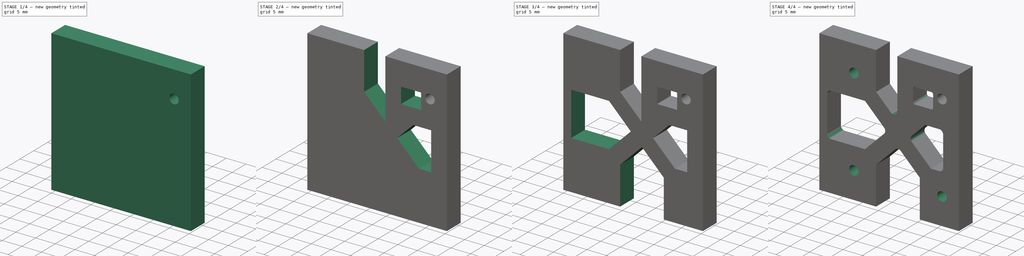
[diagram: build sequence overview — one tinted view per stage of 4, left to right]
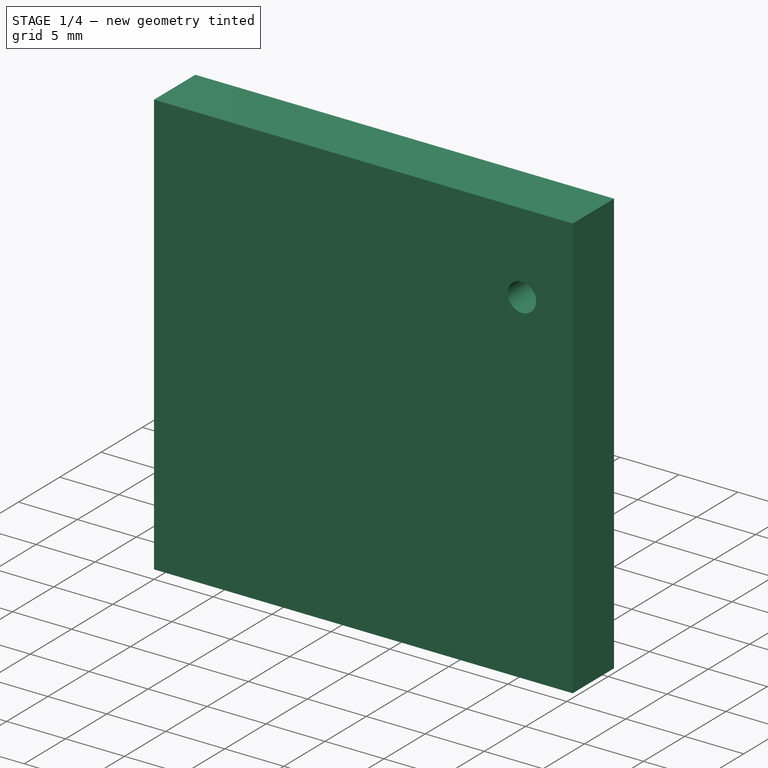
[diagram: stage 1 of 4 — iso view after this stage's code; geometry added in this stage tinted green]
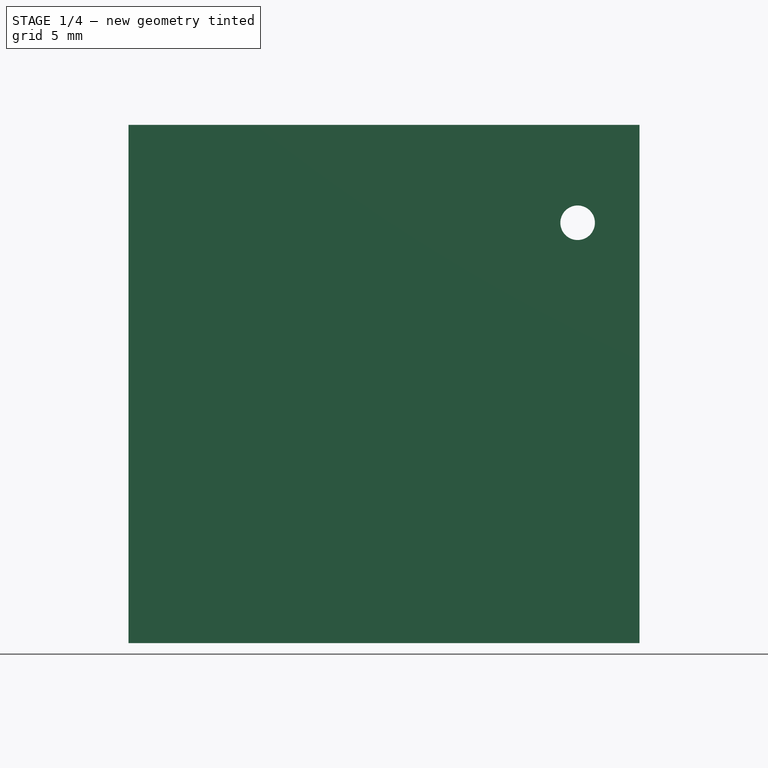
[diagram: stage 1 of 4 — front view after this stage's code; geometry added in this stage tinted green]
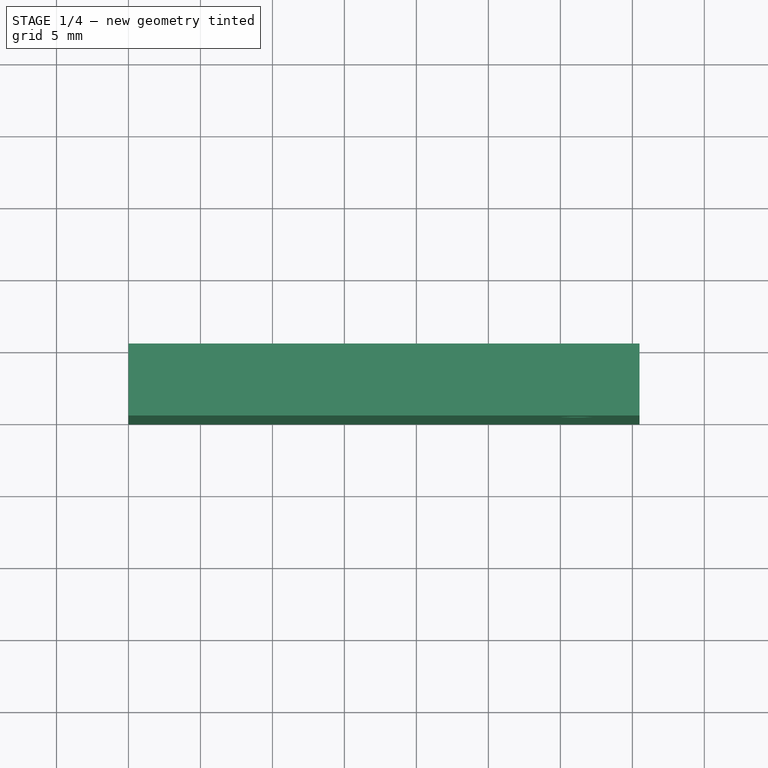
[diagram: stage 1 of 4 — top view after this stage's code; geometry added in this stage tinted green]
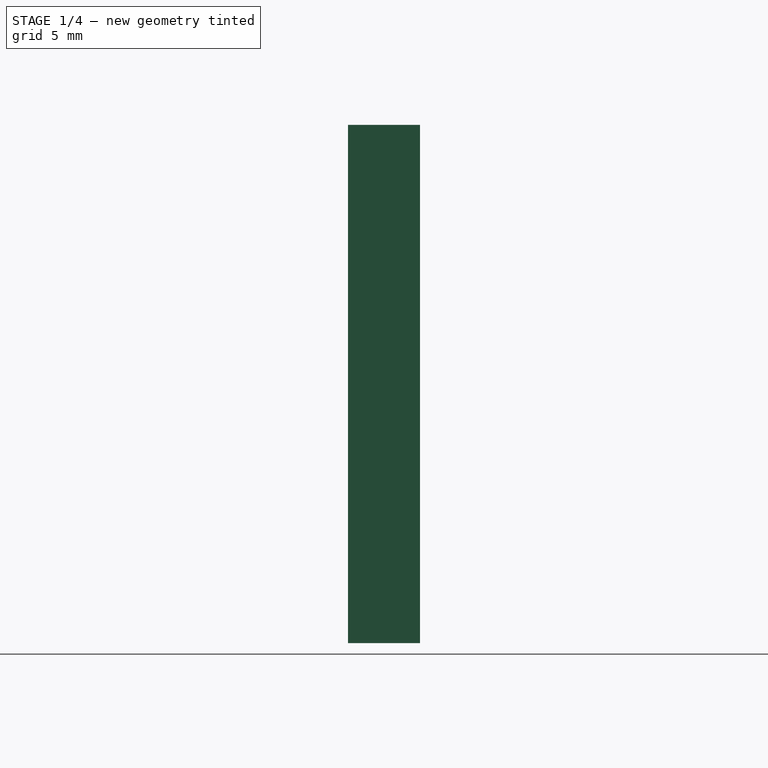
[diagram: stage 1 of 4 — right view after this stage's code; geometry added in this stage tinted green]
FCSTD DOCUMENT  (FreeCAD 0.20R)
Label: workbench
License: All rights reserved
LicenseURL: http://en.wikipedia.org/wiki/All_rights_reserved
objects: Sketcher::SketchObject×9, PartDesign::Pocket×6, Spreadsheet::Sheet×2, PartDesign::Mirrored×2, PartDesign::Fillet×2, PartDesign::Pad×1, PartDesign::Hole×1, PartDesign::MultiTransform×1, PartDesign::CoordinateSystem×1, PartDesign::Body×1
note: 34 computed .brp shape members not serialized (recipe doc carries the construction recipe); baked Part::Feature solids carry a one-line shape summary decoded from their .brp

FEATURE [Spreadsheet::Sheet] Spreadsheet  label="props"
  cells = A1=variable; B1=unit; C1=value; D1=min value; E1=typical value; F1=max value; A2=camera mounting hole distance; B2=mm; C2(mountHoleDist)=22.4; A3=camera IO hole width; B3=mm; C3(ioHoleWidth)=5.1; A4=camera IO hole height; B4=mm; C4(ioHoleHeight)=4; A5=camera IO center horizontal displacement; B5=mm; C5(ioCenHoriDisp)==17.6 - mountHoleDist / 2; A6=camera IO center vertical displacement; B6=mm; C6(ioCenVertDisp)==21.3 - mountHoleDist / 2; A8=cell diameter; B8=mm; C8(cellDiam)=40; A9=plate left width; B9=mm; C9(plateLeftWidth)=20; D9==mountHoleDist / 2 + m2HexSinkWidth / 2; E9==cellDiam / 2 - ribThick / 2; A10=plate right width; B10=mm; C10(platerightWidth)=15.5; D10==mountHoleDist / 2 + m2HexSinkWidth / 2; E10==mountHoleDist / 2 + m2HexSinkWidth; A11=plate height; B11=mm; C11(plateHeight)=36; D11==mountHoleDist + m2HexSinkDiag; E11==cellDiam - ribThick; A12=left remain width; B12=mm; C12(leftRemain)=2; D12=0; E12=0; A13=right remain width; B13=mm; C13(rightRemain)=4; D13=0; E13=4; A14=plate thickness; B14=mm; C14(plateThick)=5; A15=rib thickness; B15=mm; C15(ribThick)=4; A17=M2 hex nut countersink edge width; B17=mm; C17(m2HexSinkWidth)=2.85; A18=M2 hex nut countersink diagonal length; B18=mm; C18(m2HexSinkDiag)==m2HexSinkWidth / sqrt(3) * 2; A19=M2 hex nut countersink depth; B19=mm; C19(m2HexSinkDepth)=1.2
FEATURE [Sketcher::SketchObject] Sketch  label="plateSk"
  FullyConstrained = true
  MapMode = 5
  Placement = pos=(0,0,0) rot=(1,0,0;1.5708rad)
  Support = -> [XZ_Plane]
  expr: Constraints[10] = <<props>>.plateHeight
  expr: Constraints[7] = <<props>>.platerightWidth
  expr: Constraints[8] = <<props>>.plateLeftWidth
  sketch-geometry (4):
    g0: LineSegment StartX=-20 StartY=-18 StartZ=0 EndX=15.5 EndY=-18 EndZ=0
    g1: LineSegment StartX=15.5 StartY=-18 StartZ=0 EndX=15.5 EndY=18 EndZ=0
    g2: LineSegment StartX=15.5 StartY=18 StartZ=0 EndX=-20 EndY=18 EndZ=0
    g3: LineSegment StartX=-20 StartY=18 StartZ=0 EndX=-20 EndY=-18 EndZ=0
  constraints (11):
    c: Coincident(g0,g1)
    c: Coincident(g1,g2)
    c: Coincident(g2,g3)
    c: Coincident(g3,g0)
    c: Horizontal(g0)
    c: Horizontal(g2)
    c: Vertical(g1)
    c: DistanceX(g-1,g1) = 15.5
    c: DistanceX(g2,g-1) = 20
    c: Symmetric(g2,g0,g-1)
    c: Distance(g3) = 36
FEATURE [PartDesign::Pad] Pad  label="plate"
  Direction = (0,-1,-2e-16)
  Length = 5
  Length2 = 10
  Placement = pos=(0,0,0) rot=(1,0,0;1.5708rad)
  Profile = -> Sketch
  ReferenceAxis = -> Sketch [N_Axis]
  Type = 0
  expr: Length = <<props>>.plateThick
FEATURE [Spreadsheet::Sheet] Spreadsheet001  label="exposedProps"
  cells = A1=variable; B1=unit; C1=value; A2=plate left width; B2=mm; C2==<<props>>.plateLeftWidth; A3=plate right (USB side) width; B3=mm; C3==<<props>>.platerightWidth; A4=plate height; B4=mm; C4==<<props>>.plateHeight; A5=rib thickness; B5=mm; C5==<<props>>.ribThick; A6=plate thickness; B6=mm; C6==<<props>>.plateThick
FEATURE [Sketcher::SketchObject] Sketch001  label="m2HoleSk"
  FullyConstrained = true
  MapMode = 5
  Placement = pos=(0,-5,-1.1e-15) rot=(1,0,0;1.5708rad)
  Support = -> [Pad]
  expr: Constraints[0] = <<props>>.mountHoleDist / 2
  expr: Constraints[1] = <<props>>.mountHoleDist / 2
  sketch-geometry (1):
    g0: Circle CenterX=11.2 CenterY=11.2 CenterZ=0 NormalX=0 NormalY=0 NormalZ=1 AngleXU=0 Radius=1
  constraints (3):
    c: DistanceX(g-1,g0) = 11.2
    c: DistanceY(g-1,g0) = 11.2
    c: Diameter(g0) = 2
FEATURE [PartDesign::Hole] Hole  label="m2Hole"
  BaseFeature = -> Pad
  CustomThreadClearance = 0
  Depth = 5
  DepthType = 0
  Diameter = 2.4
  DrillForDepth = false
  DrillPoint = 1
  DrillPointAngle = 118
  HoleCutCountersinkAngle = 90
  HoleCutCustomValues = false
  HoleCutDepth = 0
  HoleCutDiameter = 6.1
  HoleCutType = 0
  ModelThread = false
  Placement = pos=(0,0,0) rot=(1,0,0;1.5708rad)
  Profile = -> Sketch001
  Tapered = false
  TaperedAngle = 90
  ThreadClass = 0
  ThreadDepth = 5
  ThreadDepthType = 0
  ThreadDirection = 0
  ThreadFit = 0
  ThreadSize = 6
  ThreadType = 1
  Threaded = false
  UseCustomThreadClearance = false
  expr: Depth = <<props>>.plateThick
FEATURE [Sketcher::SketchObject] Sketch002  label="m2SinkSk"
  ExternalGeometry = -> [Hole]
  FullyConstrained = true
  MapMode = 5
  Placement = pos=(0,0,0) rot=(-1,0,0;1.5708rad)
  Support = -> [Hole]
  expr: Constraints[19] = <<props>>.m2HexSinkWidth
  sketch-geometry (7):
    g0: LineSegment StartX=11.2 StartY=-9.55455 StartZ=0 EndX=9.775 EndY=-10.3773 EndZ=0
    g1: LineSegment StartX=9.775 StartY=-10.3773 StartZ=0 EndX=9.775 EndY=-12.0227 EndZ=0
    g2: LineSegment StartX=9.775 StartY=-12.0227 StartZ=0 EndX=11.2 EndY=-12.8454 EndZ=0
    g3: LineSegment StartX=11.2 StartY=-12.8454 StartZ=0 EndX=12.625 EndY=-12.0227 EndZ=0
    g4: LineSegment StartX=12.625 StartY=-12.0227 StartZ=0 EndX=12.625 EndY=-10.3773 EndZ=0
    g5: LineSegment StartX=12.625 StartY=-10.3773 StartZ=0 EndX=11.2 EndY=-9.55455 EndZ=0
    g6: Circle CenterX=11.2 CenterY=-11.2 CenterZ=0 NormalX=0 NormalY=0 NormalZ=1 AngleXU=0 Radius=1.64545
  constraints (16):
    c: Coincident(g0,g1)
    c: Coincident(g1,g2)
    c: Coincident(g2,g3)
    c: Coincident(g3,g4)
    c: Coincident(g4,g5)
    c: Coincident(g5,g0)
    c: Equal(g0, g1-g5) x5
    c: PointOnObject(g0,g6)
    c: PointOnObject(g1,g6)
    c: PointOnObject(g2,g6)
    c: PointOnObject(g3,g6)
    c: PointOnObject(g4,g6)
    c: PointOnObject(g5,g6)
    c: Coincident(g6,g-3)
    c: Vertical(g0,g6)
    c: Distance(g0,g4) = 2.85
FEATURE [PartDesign::Pocket] Pocket  label="m2Sink"
  BaseFeature = -> Hole
  Direction = (0,-1,-2e-16)
  Length = 1.2
  Length2 = 5
  Placement = pos=(0,0,0) rot=(1,0,0;1.5708rad)
  Profile = -> Sketch002
  ReferenceAxis = -> Sketch002 [N_Axis]
  Type = 0
  expr: Length = <<props>>.m2HexSinkDepth
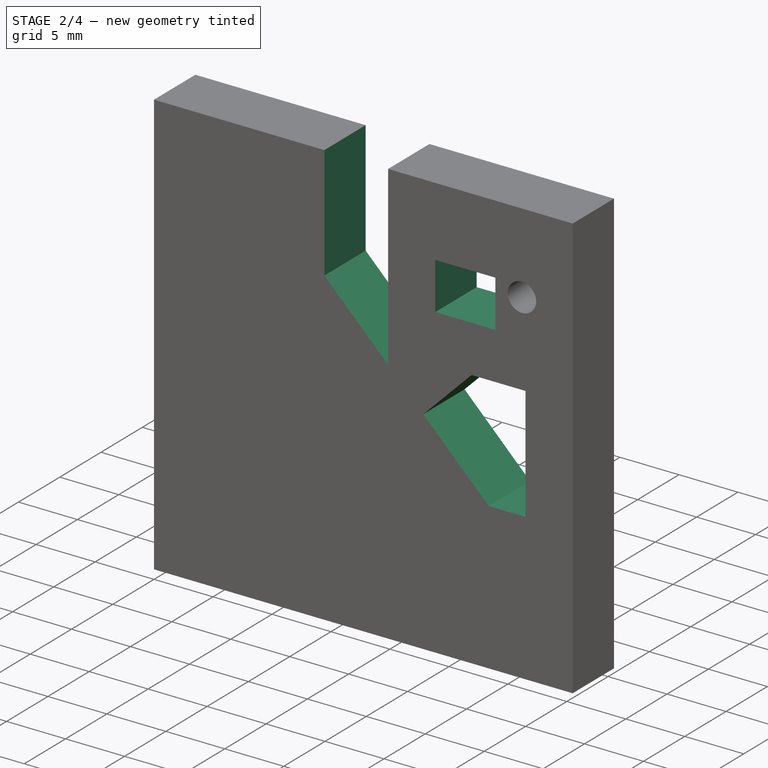
[diagram: stage 2 of 4 — iso view after this stage's code; geometry added in this stage tinted green]
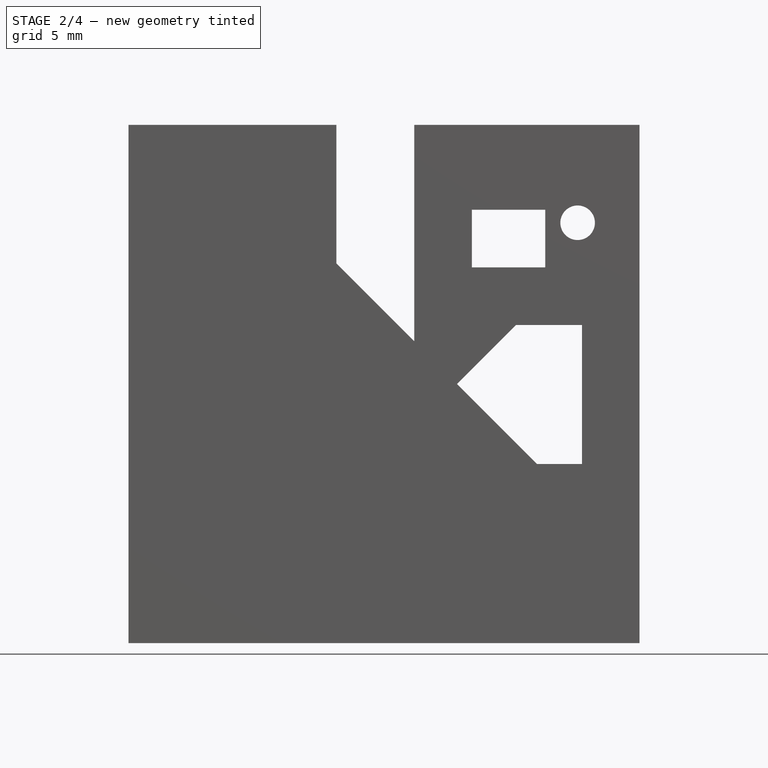
[diagram: stage 2 of 4 — front view after this stage's code; geometry added in this stage tinted green]
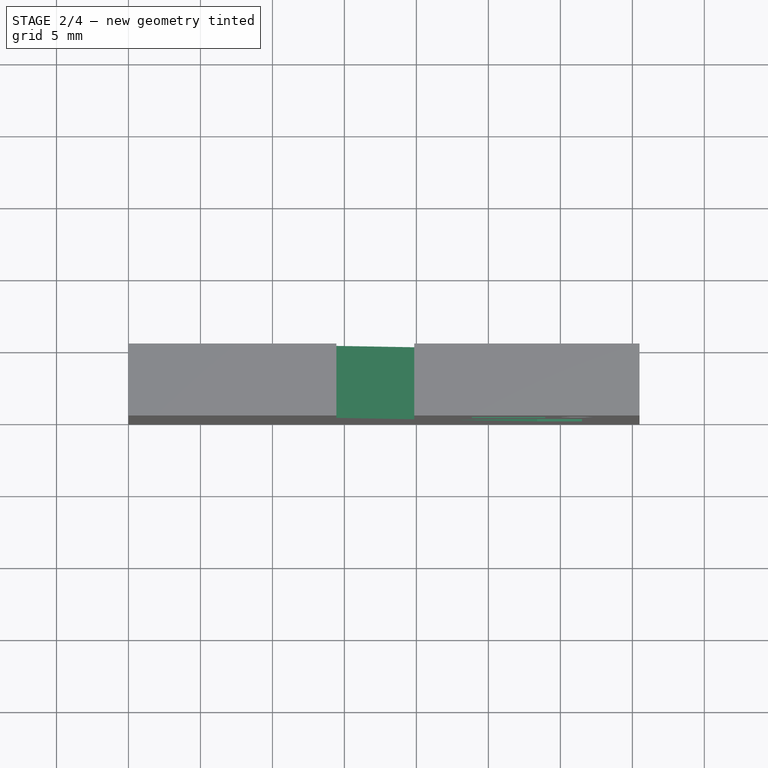
[diagram: stage 2 of 4 — top view after this stage's code; geometry added in this stage tinted green]
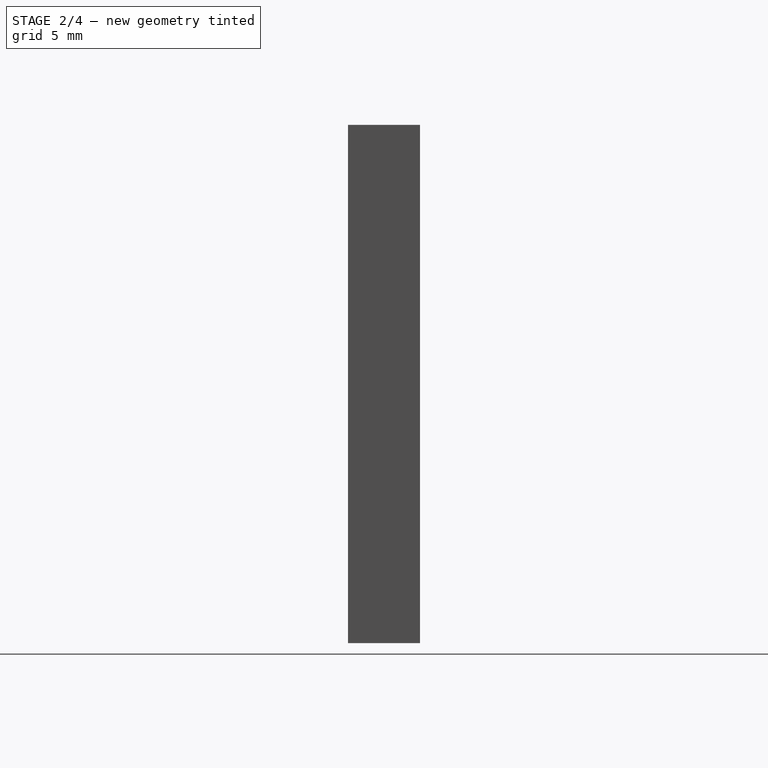
[diagram: stage 2 of 4 — right view after this stage's code; geometry added in this stage tinted green]
FEATURE [Sketcher::SketchObject] Sketch003  label="ioHoleSk"
  FullyConstrained = true
  MapMode = 5
  Placement = pos=(0,0,0) rot=(-1,0,0;1.5708rad)
  Support = -> [Pocket]
  expr: Constraints[10] = <<props>>.ioCenVertDisp
  expr: Constraints[11] = <<props>>.ioHoleWidth
  expr: Constraints[12] = <<props>>.ioHoleHeight
  expr: Constraints[9] = <<props>>.ioCenHoriDisp
  sketch-geometry (5):
    g0: LineSegment StartX=8.95 StartY=-12.1 StartZ=0 EndX=3.85 EndY=-12.1 EndZ=0
    g1: LineSegment StartX=3.85 StartY=-12.1 StartZ=0 EndX=3.85 EndY=-8.1 EndZ=0
    g2: LineSegment StartX=3.85 StartY=-8.1 StartZ=0 EndX=8.95 EndY=-8.1 EndZ=0
    g3: LineSegment StartX=8.95 StartY=-8.1 StartZ=0 EndX=8.95 EndY=-12.1 EndZ=0
    g4: GeomPoint X=6.4 Y=-10.1 Z=0
  constraints (13):
    c: Coincident(g0,g1)
    c: Coincident(g1,g2)
    c: Coincident(g2,g3)
    c: Coincident(g3,g0)
    c: Horizontal(g0)
    c: Horizontal(g2)
    c: Vertical(g1)
    c: Vertical(g3)
    c: Symmetric(g0,g2,g4)
    c: DistanceX(g-1,g4) = 6.4
    c: DistanceY(g4,g-1) = 10.1
    c: Distance(g0) = 5.1
    c: Distance(g3) = 4
FEATURE [PartDesign::Pocket] Pocket001  label="ioHole"
  BaseFeature = -> Pocket
  Direction = (0,-1,-2e-16)
  Length = 5
  Length2 = 5
  Placement = pos=(0,0,0) rot=(1,0,0;1.5708rad)
  Profile = -> Sketch003
  ReferenceAxis = -> Sketch003 [N_Axis]
  Type = 2
FEATURE [Sketcher::SketchObject] Sketch004  label="lightTopSk"
  ExternalGeometry = -> [Pocket001]
  FullyConstrained = true
  MapMode = 5
  Placement = pos=(0,0,0) rot=(-1,0,0;1.5708rad)
  Support = -> [Pocket001]
  expr: Constraints[11] = <<props>>.ribThick / 2
  expr: Constraints[12] = <<props>>.ribThick
  expr: Constraints[14] = <<props>>.m2HexSinkDiag / 2 + <<props>>.ribThick
  sketch-geometry (6):
    g0: LineSegment StartX=-0.15 StartY=-2.97843 StartZ=0 EndX=-5.55455 EndY=-8.38298 EndZ=0
    g1: LineSegment StartX=-5.55455 StartY=-8.38298 StartZ=0 EndX=-5.55455 EndY=-18 EndZ=0
    g2: LineSegment StartX=-5.55455 StartY=-18 StartZ=0 EndX=-0.15 EndY=-18 EndZ=0
    g3: LineSegment StartX=-0.15 StartY=-18 StartZ=0 EndX=-0.15 EndY=-2.97843 EndZ=0
    g4: LineSegment StartX=0 StartY=0 StartZ=0 EndX=11.2 EndY=-11.2 EndZ=0
    g5: GeomPoint X=-11.2 Y=-11.2 Z=0
  constraints (15):
    c: Coincident(g0,g1)
    c: Coincident(g1,g2)
    c: Horizontal(g2)
    c: Coincident(g2,g3)
    c: Coincident(g3,g0)
    c: Coincident(g4,g-1)
    c: Perpendicular(g4,g0)
    c: Coincident(g4,g-3)
    c: Vertical(g3)
    c: Vertical(g1)
    c: PointOnObject(g2,g-4)
    c: Distance(g4,g0) = 2
    c: Distance(g0,g-5) = 4
    c: Symmetric(g4,g5,g-2)
    c: Distance(g5,g1) = 5.64545
FEATURE [Sketcher::SketchObject] Sketch005  label="lightRightSk"
  ExternalGeometry = -> [Pocket001]
  FullyConstrained = true
  MapMode = 5
  Placement = pos=(0,0,0) rot=(-1,0,0;1.5708rad)
  Support = -> [Pocket001]
  expr: Constraints[15] = <<props>>.ribThick
  expr: Constraints[16] = <<props>>.rightRemain
  expr: Constraints[18] = <<props>>.m2HexSinkDiag / 2 + <<props>>.ribThick
  expr: Constraints[9] = <<props>>.ribThick / 2
  sketch-geometry (8):
    g0: LineSegment StartX=2.82843 StartY=0 StartZ=0 EndX=6.92843 EndY=-4.1 EndZ=0
    g1: LineSegment StartX=6.92843 StartY=-4.1 StartZ=0 EndX=11.5 EndY=-4.1 EndZ=0
    g2: LineSegment StartX=11.5 StartY=-4.1 StartZ=0 EndX=11.5 EndY=5.55455 EndZ=0
    g3: LineSegment StartX=11.5 StartY=5.55455 StartZ=0 EndX=8.38298 EndY=5.55455 EndZ=0
    g4: LineSegment StartX=8.38298 StartY=5.55455 StartZ=0 EndX=2.82843 EndY=0 EndZ=0
    g5: GeomPoint X=11.2 Y=-11.2 Z=0
    g6: LineSegment StartX=0 StartY=0 StartZ=0 EndX=11.2 EndY=-11.2 EndZ=0
    g7: GeomPoint X=11.2 Y=11.2 Z=0
  constraints (19):
    c: PointOnObject(g0,g-1)
    c: Coincident(g0,g1)
    c: Horizontal(g1)
    c: Coincident(g1,g2)
    c: Vertical(g2)
    c: Coincident(g2,g3)
    c: Horizontal(g3)
    c: Coincident(g3,g4)
    c: Coincident(g4,g0)
    c: Distance(g-1,g4) = 2
    c: Coincident(g5,g-3)
    c: Coincident(g6,g-1)
    c: Coincident(g6,g5)
    c: Perpendicular(g4,g0)
    c: Parallel(g0,g6)
    c: Distance(g0,g-4) = 4
    c: Distance(g1,g-5) = 4
    c: Symmetric(g7,g5,g-1)
    c: Distance(g7,g3) = 5.64545
FEATURE [Sketcher::SketchObject] Sketch006  label="lightLeftSk"
  ExternalGeometry = -> [Pocket001]
  FullyConstrained = true
  MapMode = 5
  Placement = pos=(0,0,0) rot=(-1,0,0;1.5708rad)
  Support = -> [Pocket001]
  expr: Constraints[10] = <<props>>.ribThick / 2
  expr: Constraints[15] = <<props>>.m2HexSinkDiag / 2 + <<props>>.ribThick
  expr: Constraints[16] = <<props>>.leftRemain
  sketch-geometry (6):
    g0: LineSegment StartX=-2.82843 StartY=0 StartZ=0 EndX=-8.38298 EndY=5.55455 EndZ=0
    g1: LineSegment StartX=-8.38298 StartY=5.55455 StartZ=0 EndX=-18 EndY=5.55455 EndZ=0
    g2: LineSegment StartX=-18 StartY=5.55455 StartZ=0 EndX=-18 EndY=-5.55455 EndZ=0
    g3: LineSegment StartX=-18 StartY=-5.55455 StartZ=0 EndX=-8.38298 EndY=-5.55455 EndZ=0
    g4: LineSegment StartX=-8.38298 StartY=-5.55455 StartZ=0 EndX=-2.82843 EndY=0 EndZ=0
    g5: LineSegment StartX=0 StartY=0 StartZ=0 EndX=11.2 EndY=-11.2 EndZ=0
  constraints (17):
    c: PointOnObject(g0,g-1)
    c: Coincident(g0,g1)
    c: Horizontal(g1)
    c: Coincident(g1,g2)
    c: Vertical(g2)
    c: Coincident(g2,g3)
    c: Horizontal(g3)
    c: Coincident(g3,g4)
    c: Coincident(g4,g0)
    c: Vertical(g3,g0)
    c: Distance(g-1,g0) = 2
    c: Coincident(g5,g-1)
    c: Coincident(g5,g-3)
    c: Perpendicular(g4,g0)
    c: Parallel(g0,g5)
    c: Distance(g5,g3) = 5.64545
    c: Distance(g1,g-4) = 2
FEATURE [Sketcher::SketchObject] Sketch007  label="lightBotSk"
  ExternalGeometry = -> [Pocket001]
  FullyConstrained = true
  MapMode = 5
  Placement = pos=(0,0,0) rot=(-1,0,0;1.5708rad)
  Support = -> [Pocket001]
  expr: Constraints[15] = <<props>>.m2HexSinkDiag / 2 + <<props>>.ribThick
  expr: Constraints[16] = <<props>>.ribThick / 2
  sketch-geometry (6):
    g0: LineSegment StartX=0 StartY=2.82843 StartZ=0 EndX=-5.55455 EndY=8.38298 EndZ=0
    g1: LineSegment StartX=-5.55455 StartY=8.38298 StartZ=0 EndX=-5.55455 EndY=18 EndZ=0
    g2: LineSegment StartX=-5.55455 StartY=18 StartZ=0 EndX=5.55455 EndY=18 EndZ=0
    g3: LineSegment StartX=5.55455 StartY=18 StartZ=0 EndX=5.55455 EndY=8.38298 EndZ=0
    g4: LineSegment StartX=5.55455 StartY=8.38298 StartZ=0 EndX=0 EndY=2.82843 EndZ=0
    g5: LineSegment StartX=0 StartY=0 StartZ=0 EndX=11.2 EndY=-11.2 EndZ=0
  constraints (17):
    c: PointOnObject(g0,g-2)
    c: Coincident(g0,g1)
    c: Vertical(g1)
    c: Coincident(g1,g2)
    c: Horizontal(g2)
    c: Coincident(g2,g3)
    c: Vertical(g3)
    c: Coincident(g3,g4)
    c: Coincident(g4,g0)
    c: Horizontal(g0,g3)
    c: PointOnObject(g2,g-3)
    c: Coincident(g5,g-1)
    c: Coincident(g5,g-4)
    c: Parallel(g5,g0)
    c: Perpendicular(g4,g0)
    c: Distance(g5,g3) = 5.64545
    c: Distance(g5,g0) = 2
FEATURE [PartDesign::Pocket] Pocket002  label="lightTop"
  BaseFeature = -> Pocket001
  Direction = (0,-1,-2e-16)
  Length = 5
  Length2 = 5
  Placement = pos=(0,0,0) rot=(1,0,0;1.5708rad)
  Profile = -> Sketch004
  ReferenceAxis = -> Sketch004 [N_Axis]
  Type = 2
FEATURE [PartDesign::Pocket] Pocket003  label="lightRight"
  BaseFeature = -> Pocket002
  Direction = (0,-1,-2e-16)
  Length = 5
  Length2 = 5
  Placement = pos=(0,0,0) rot=(1,0,0;1.5708rad)
  Profile = -> Sketch005
  ReferenceAxis = -> Sketch005 [N_Axis]
  Type = 2
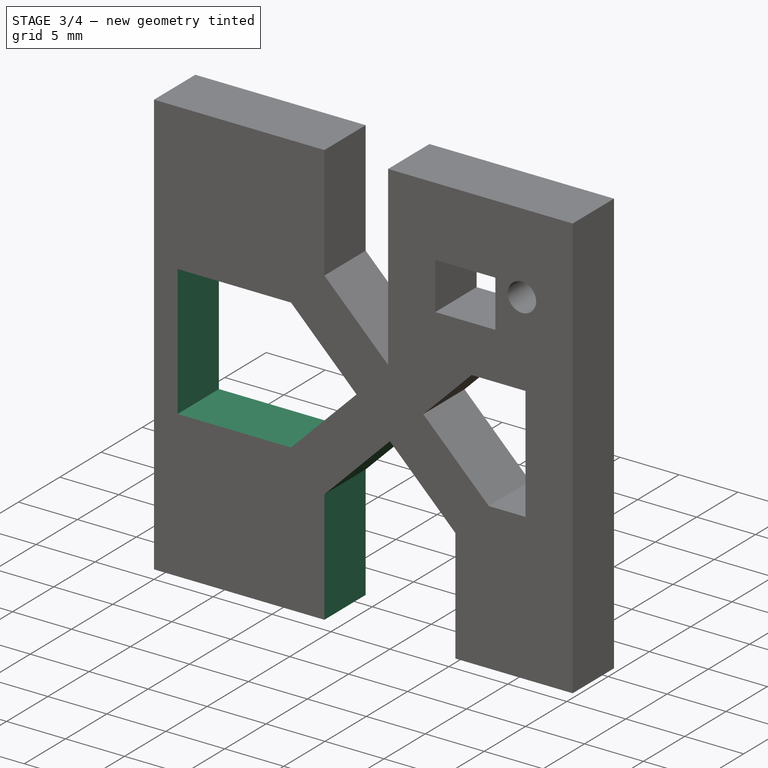
[diagram: stage 3 of 4 — iso view after this stage's code; geometry added in this stage tinted green]
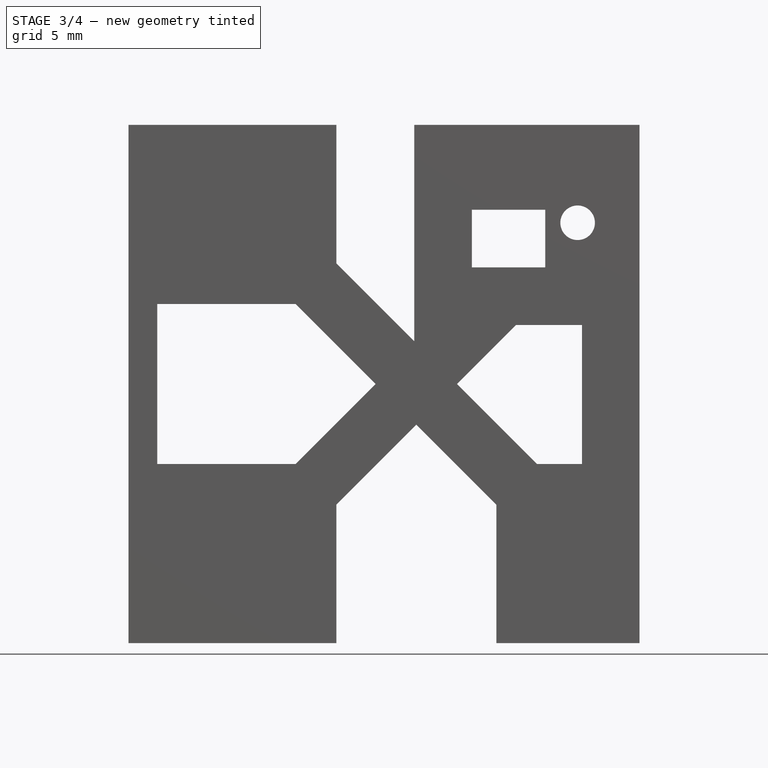
[diagram: stage 3 of 4 — front view after this stage's code; geometry added in this stage tinted green]
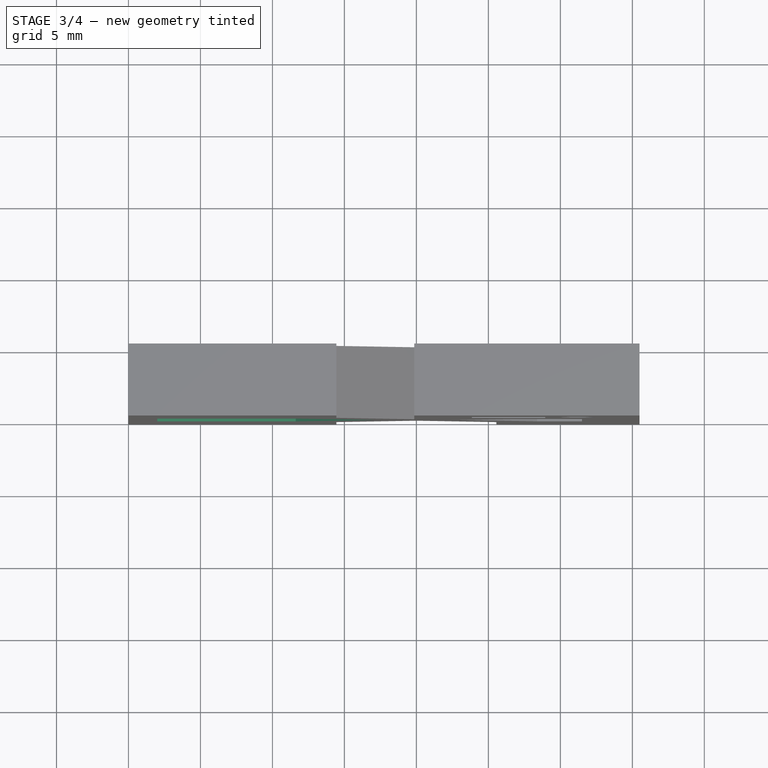
[diagram: stage 3 of 4 — top view after this stage's code; geometry added in this stage tinted green]
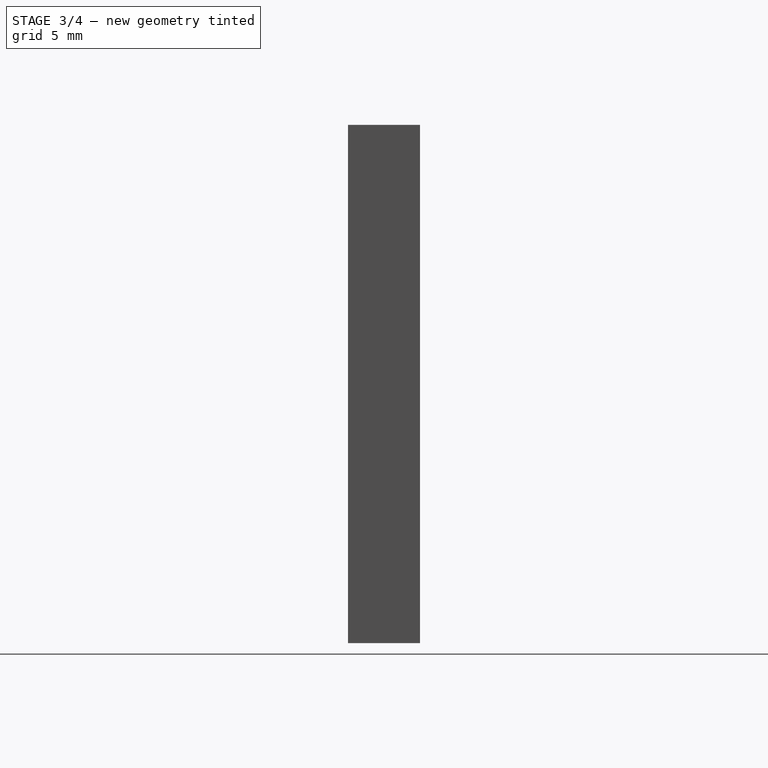
[diagram: stage 3 of 4 — right view after this stage's code; geometry added in this stage tinted green]
FEATURE [PartDesign::Pocket] Pocket004  label="lightLeft"
  BaseFeature = -> Pocket003
  Direction = (0,-1,-2e-16)
  Length = 5
  Length2 = 5
  Placement = pos=(0,0,0) rot=(1,0,0;1.5708rad)
  Profile = -> Sketch006
  ReferenceAxis = -> Sketch006 [N_Axis]
  Type = 2
FEATURE [PartDesign::Pocket] Pocket005  label="lightBot"
  BaseFeature = -> Pocket004
  Direction = (0,-1,-2e-16)
  Length = 5
  Length2 = 5
  Placement = pos=(0,0,0) rot=(1,0,0;1.5708rad)
  Profile = -> Sketch007
  ReferenceAxis = -> Sketch007 [N_Axis]
  Type = 2
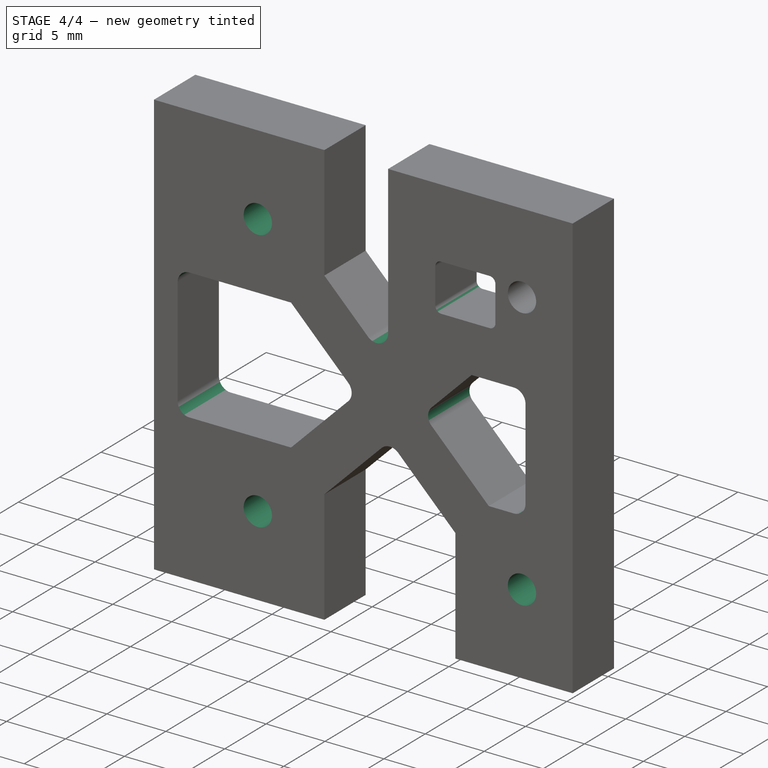
[diagram: stage 4 of 4 — iso view after this stage's code; geometry added in this stage tinted green]
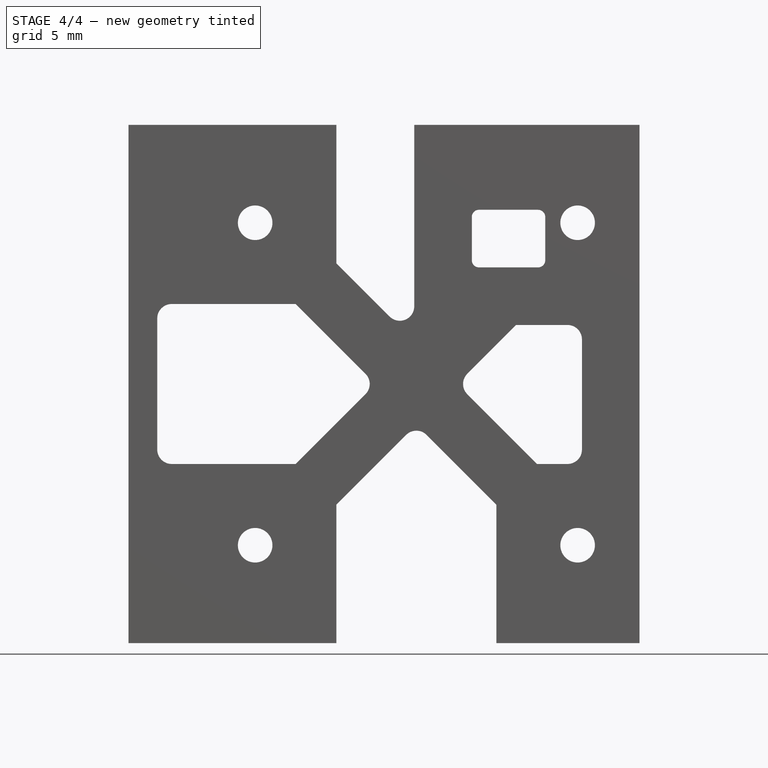
[diagram: stage 4 of 4 — front view after this stage's code; geometry added in this stage tinted green]
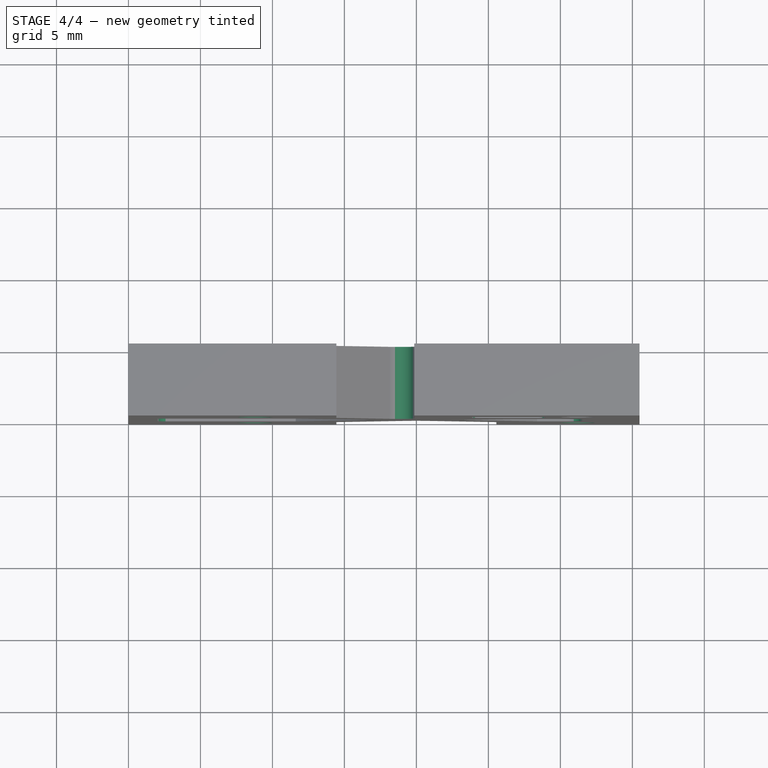
[diagram: stage 4 of 4 — top view after this stage's code; geometry added in this stage tinted green]
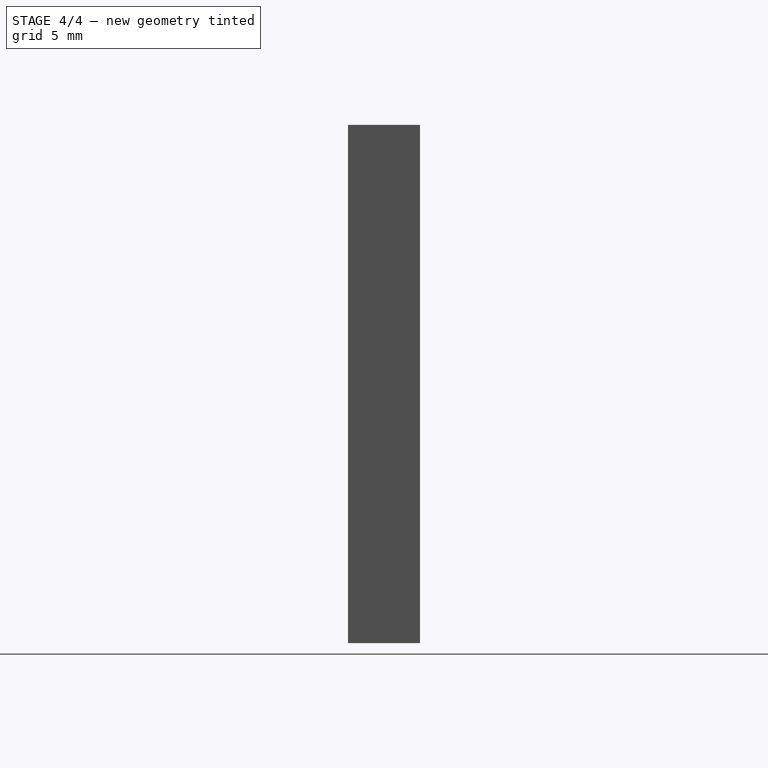
[diagram: stage 4 of 4 — right view after this stage's code; geometry added in this stage tinted green]
FEATURE [PartDesign::Mirrored] Mirrored
  MirrorPlane = -> XY_Plane
  Placement = pos=(0,0,0) rot=(1,0,0;1.5708rad)
FEATURE [PartDesign::Mirrored] Mirrored001
  MirrorPlane = -> YZ_Plane
  Placement = pos=(0,0,0) rot=(1,0,0;1.5708rad)
FEATURE [PartDesign::MultiTransform] MultiTransform  label="m2Quad"
  BaseFeature = -> Pocket005
  Originals = -> [Hole,Pocket]
  Placement = pos=(0,0,0) rot=(1,0,0;1.5708rad)
  Transformations = -> [Mirrored,Mirrored001]
FEATURE [PartDesign::Fillet] Fillet001  label="ioFillet"
  Base = -> MultiTransform [Edge142,Edge145,Edge144,Edge143]
  BaseFeature = -> MultiTransform
  Placement = pos=(0,0,0) rot=(1,0,0;1.5708rad)
  Radius = 0.5
  SupportTransform = false
  UseAllEdges = false
FEATURE [PartDesign::Fillet] Fillet  label="lightFillet"
  Base = -> Fillet001 [Edge82,Edge149,Edge152,Edge146,Edge118,Edge115,Edge112,Edge88]
  BaseFeature = -> Fillet001
  Placement = pos=(0,0,0) rot=(1,0,0;1.5708rad)
  Radius = 1
  SupportTransform = false
  UseAllEdges = false
FEATURE [Sketcher::SketchObject] Sketch008  label="datumSk"
  FullyConstrained = true
  MapMode = 5
  Placement = pos=(0,0,0) rot=(1,0,0;1.5708rad)
  Support = -> [XZ_Plane]
  sketch-geometry (2):
    g0: LineSegment StartX=0 StartY=0 StartZ=0 EndX=10 EndY=0 EndZ=0
    g1: LineSegment StartX=0 StartY=0 StartZ=0 EndX=0 EndY=-10 EndZ=0
  constraints (6):
    c: Coincident(g0,g-1)
    c: PointOnObject(g0,g-1)
    c: Coincident(g1,g0)
    c: PointOnObject(g1,g-2)
    c: Distance(g0) = 10
    c: Distance(g1) = 10
FEATURE [PartDesign::CoordinateSystem] mountPlateLCS
  AttacherType = Attacher::AttachEngine3D
  MapMode = 49
  Placement = pos=(0,0,0) rot=(-1,0,0;1.5708rad)
  Support = -> [Sketch008]
FEATURE [PartDesign::Body] Body  label="mountPlate"
  Group = -> [Sketch008,Sketch,Pad,Sketch001,Hole,Sketch002,Pocket,Sketch003,Pocket001,Sketch004,Sketch005,Sketch006,Sketch007,Pocket002,Pocket003,Pocket004,Pocket005,MultiTransform,Fillet001,Mirrored,Mirrored001,Fillet,mountPlateLCS]
  Origin = -> Origin
  Tip = -> Fillet
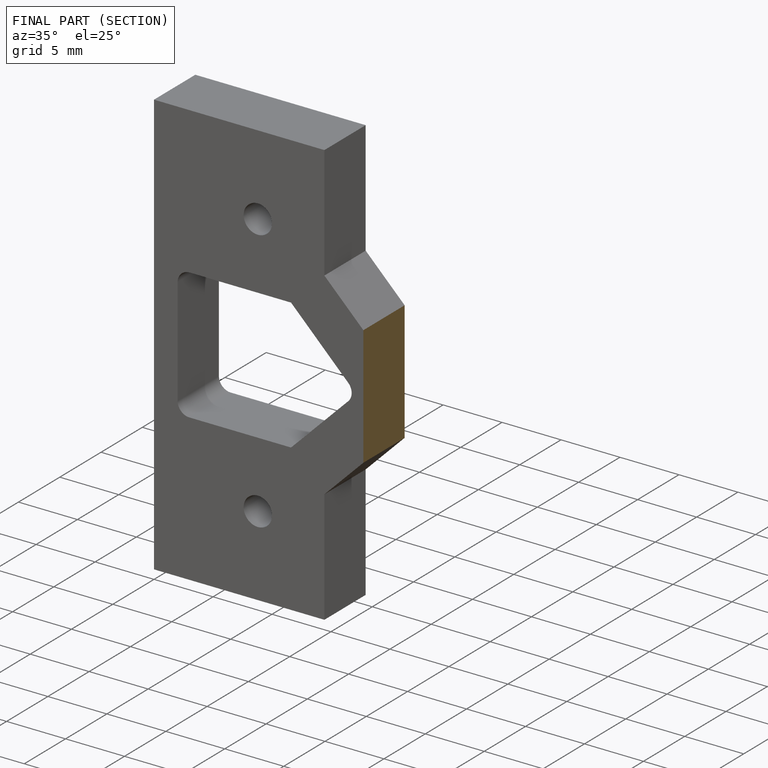
[diagram: finished part — half-section view (interior)]
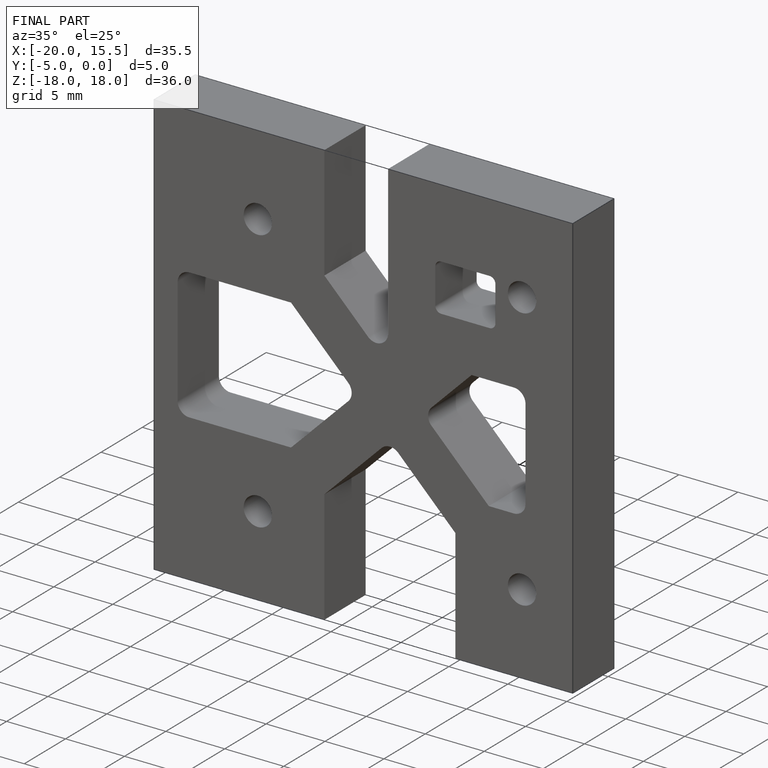
[diagram: finished part — iso view with bounding-box wireframe]
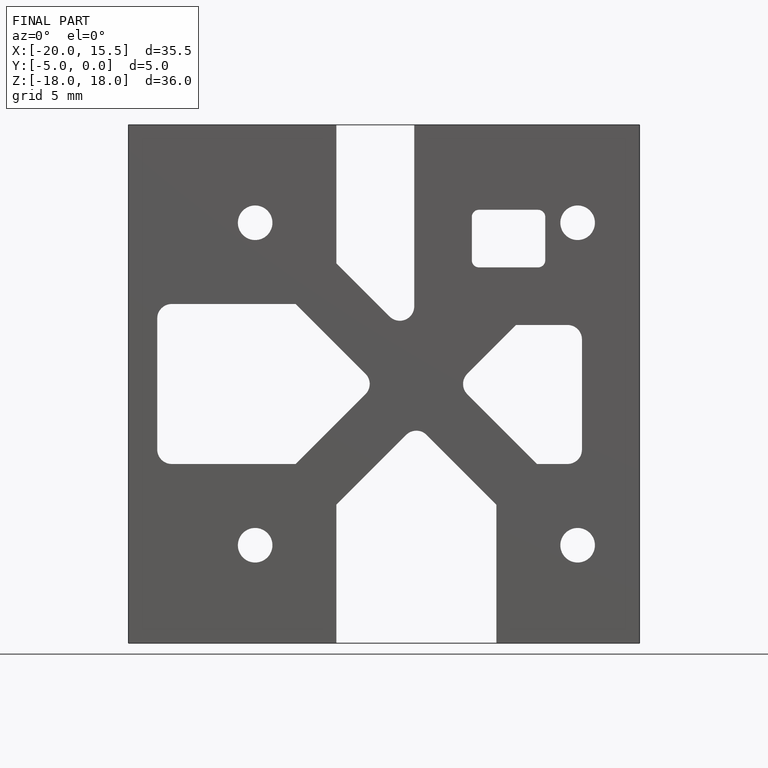
[diagram: finished part — front view with bounding-box wireframe]
